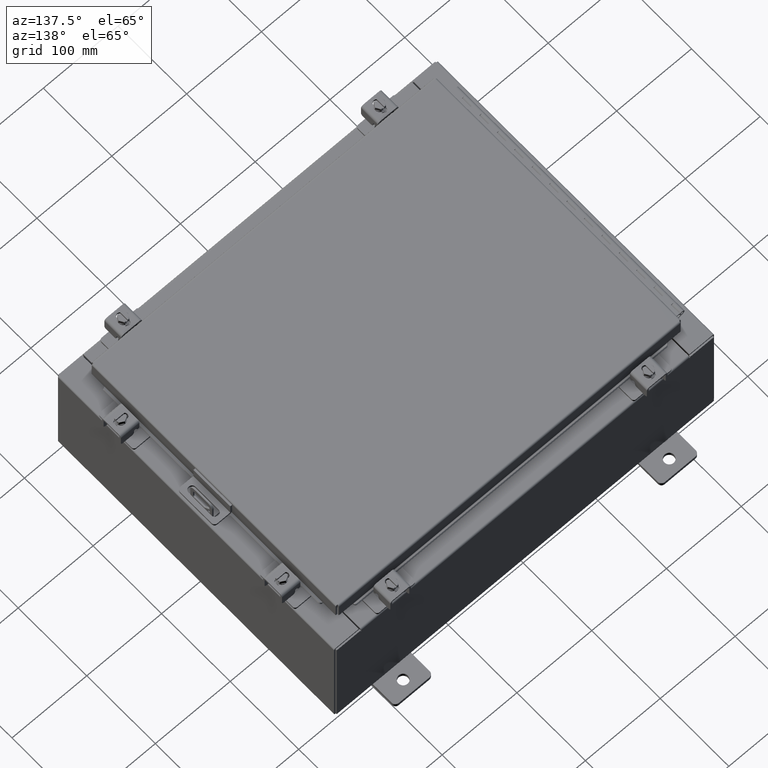
[diagram: clean part render]
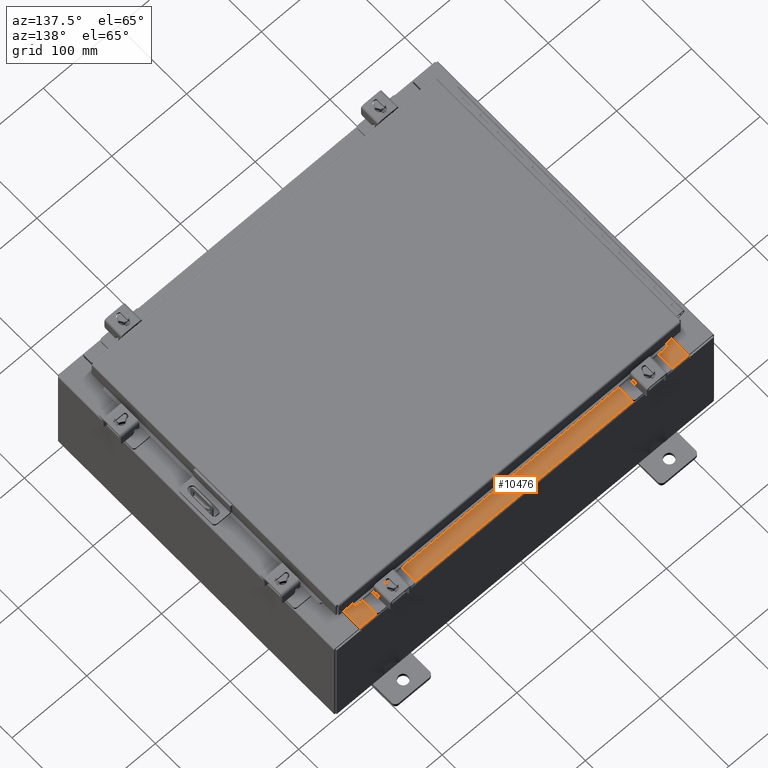
[diagram: same view with one face highlighted and labeled with its STEP entity id]
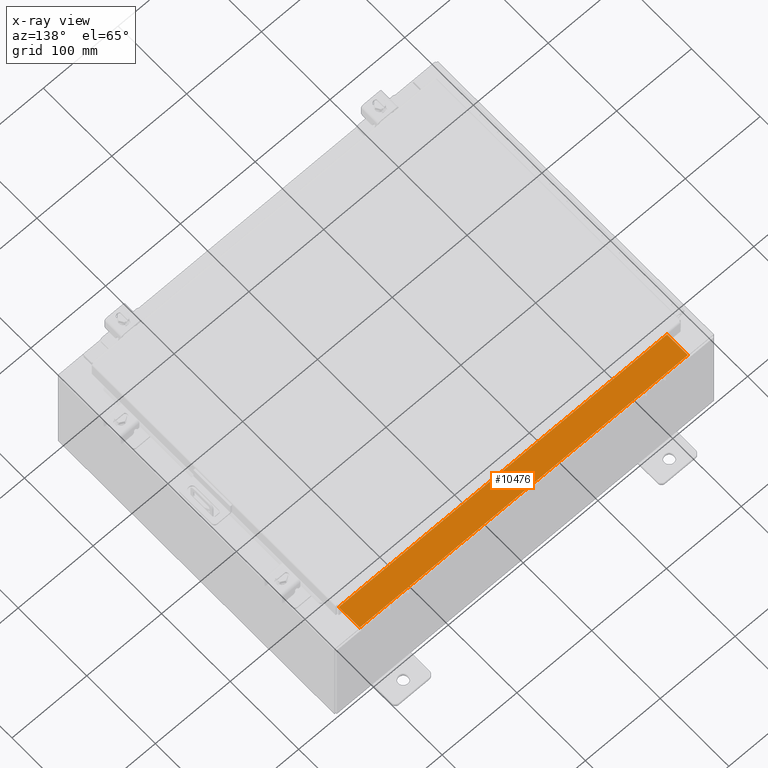
[diagram: x-ray of the same camera — body ghosted, the highlighted face saturated]
A machine part, auxiliary view. The second image highlights one B-rep face of the part: STEP entity #10476.
The next image is the same camera in x-ray: the body ghosted, the highlighted face saturated — about 0% of this face is hidden behind the body in this view.
In plain terms, the highlighted planar face has unit normal (0, 0, 1).
Its self-contained STEP definition (entity closure, byte-faithful):
#766 = LINE ( 'NONE', #10542, #11460 ) ;
#2452 = DIRECTION ( 'NONE',  ( -0.0000000000000000000, 1.000000000000000000, -3.566381192773190000E-015 ) ) ;
#2956 = DIRECTION ( 'NONE',  ( -1.000000000000000000, 3.162886113166609200E-017, -1.128005754888089100E-031 ) ) ;
#3051 = ORIENTED_EDGE ( 'NONE', *, *, #20273, .F. ) ;
#5689 = LINE ( 'NONE', #8941, #20542 ) ;
#5856 = VECTOR ( 'NONE', #19881, 39.37007874015748100 ) ;
#6161 = CARTESIAN_POINT ( 'NONE',  ( -8.637200000000000000, -1.287299999999999200, 3.000000000000005300 ) ) ;
#7069 = ORIENTED_EDGE ( 'NONE', *, *, #15006, .T. ) ;
#7380 = CARTESIAN_POINT ( 'NONE',  ( 8.637200000000000000, -1.287299999999999900, 3.000000000000005300 ) ) ;
#7382 = CARTESIAN_POINT ( 'NONE',  ( 8.637200000000000000, -1.300299999999999800, 3.000000000000005300 ) ) ;
#8941 = CARTESIAN_POINT ( 'NONE',  ( -2.773851121247453900E-018, -0.08770000000000000000, 3.000000000000001300 ) ) ;
#9694 = VERTEX_POINT ( 'NONE', #7380 ) ;
#10252 = VECTOR ( 'NONE', #21495, 39.37007874015748100 ) ;
#10476 = ADVANCED_FACE ( 'NONE', ( #13625 ), #17935, .T. ) ;
#10542 = CARTESIAN_POINT ( 'NONE',  ( -8.637200000000000000, -0.07469999999999973900, 3.000000000000000900 ) ) ;
#10740 = VERTEX_POINT ( 'NONE', #16746 ) ;
#11460 = VECTOR ( 'NONE', #2452, 39.37007874015748100 ) ;
#11868 = LINE ( 'NONE', #23948, #5856 ) ;
#13625 = FACE_OUTER_BOUND ( 'NONE', #24618, .T. ) ;
#13857 = DIRECTION ( 'NONE',  ( 0.0000000000000000000, 3.566381192773190000E-015, 1.000000000000000000 ) ) ;
#15006 = EDGE_CURVE ( 'NONE', #10740, #25734, #5689, .T. ) ;
#15632 = LINE ( 'NONE', #7382, #10252 ) ;
#16746 = CARTESIAN_POINT ( 'NONE',  ( 8.637200000000000000, -0.08769999999999965300, 3.000000000000000900 ) ) ;
#17391 = AXIS2_PLACEMENT_3D ( 'NONE', #21812, #13857, #22012 ) ;
#17935 = PLANE ( 'NONE',  #17391 ) ;
#18269 = EDGE_CURVE ( 'NONE', #9694, #20143, #11868, .T. ) ;
#18352 = ORIENTED_EDGE ( 'NONE', *, *, #19350, .F. ) ;
#19350 = EDGE_CURVE ( 'NONE', #10740, #9694, #15632, .T. ) ;
#19881 = DIRECTION ( 'NONE',  ( -1.000000000000000000, 0.0000000000000000000, 0.0000000000000000000 ) ) ;
#20143 = VERTEX_POINT ( 'NONE', #6161 ) ;
#20273 = EDGE_CURVE ( 'NONE', #20143, #25734, #766, .T. ) ;
#20542 = VECTOR ( 'NONE', #2956, 39.37007874015748100 ) ;
#21495 = DIRECTION ( 'NONE',  ( -0.0000000000000000000, -1.000000000000000000, 3.566381192773190000E-015 ) ) ;
#21812 = CARTESIAN_POINT ( 'NONE',  ( 0.0000000000000000000, 1.069354855923099900E-014, 3.000000000000000900 ) ) ;
#22012 = DIRECTION ( 'NONE',  ( 0.0000000000000000000, -1.000000000000000000, 3.566381192773190000E-015 ) ) ;
#22439 = ORIENTED_EDGE ( 'NONE', *, *, #18269, .F. ) ;
#23948 = CARTESIAN_POINT ( 'NONE',  ( 8.637200000000000000, -1.287299999999999900, 3.000000000000005300 ) ) ;
#24618 = EDGE_LOOP ( 'NONE', ( #3051, #22439, #18352, #7069 ) ) ;
#25734 = VERTEX_POINT ( 'NONE', #26006 ) ;
#26006 = CARTESIAN_POINT ( 'NONE',  ( -8.637200000000000000, -0.08770000000000000000, 3.000000000000000900 ) ) ;